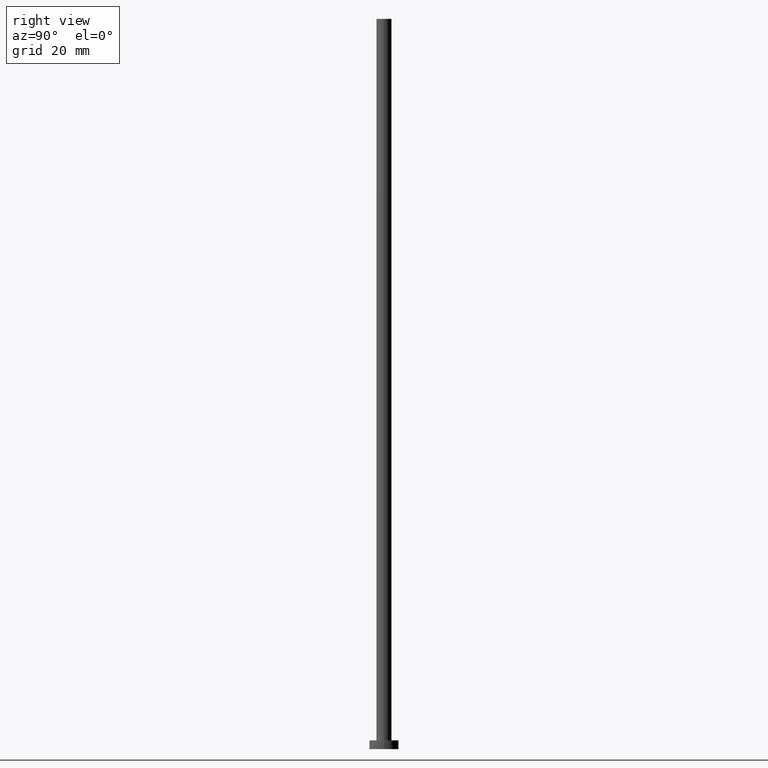
[diagram: clean part render]
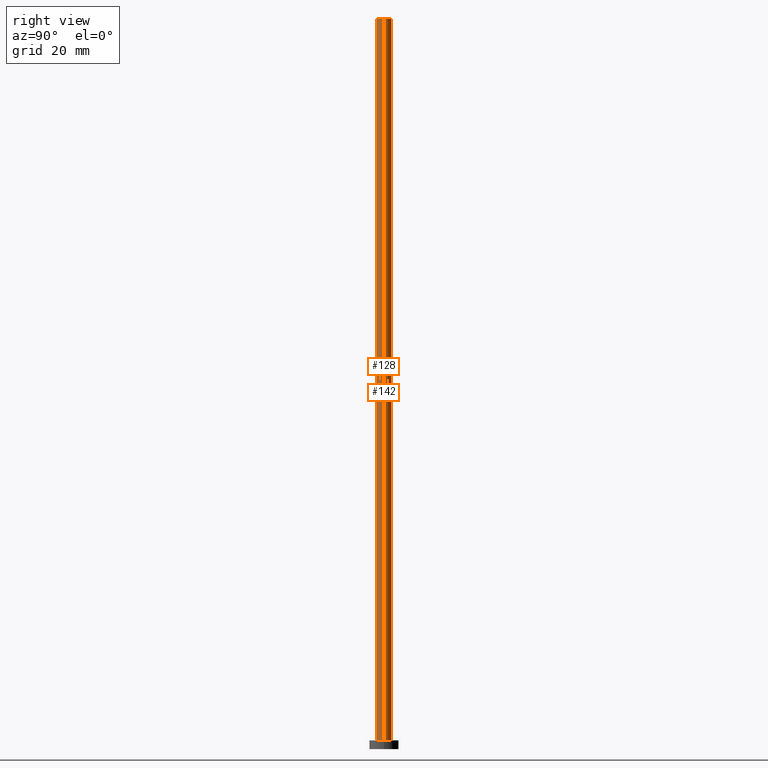
[diagram: same view with one multi-face feature highlighted, each face labeled with its STEP entity id]
A machine part, right view. The highlighted faces form ONE feature: a constant-radius fillet chain: 2 tangent blend faces with common blend radius 2.6 mm. The faces share edges in the B-rep.
Their STEP definitions:
[1] entity #142 (Cylinder):
#30 = CARTESIAN_POINT ( 'NONE',  ( -2.600000000000000089, 0.000000000000000000, 3.000000000000000000 ) ) ;
#34 = CARTESIAN_POINT ( 'NONE',  ( -2.600000000000000089, 0.000000000000000000, 250.0000000000000000 ) ) ;
#37 = VERTEX_POINT ( 'NONE', #40 ) ;
#40 = CARTESIAN_POINT ( 'NONE',  ( 2.600000000000000089, 3.184081677783118191E-16, 250.0000000000000000 ) ) ;
#50 = VECTOR ( 'NONE', #157, 1000.000000000000000 ) ;
#51 = DIRECTION ( 'NONE',  ( 0.000000000000000000, 0.000000000000000000, 1.000000000000000000 ) ) ;
#52 = EDGE_CURVE ( 'NONE', #37, #168, #176, .T. ) ;
#65 = DIRECTION ( 'NONE',  ( -1.000000000000000000, 0.000000000000000000, 0.000000000000000000 ) ) ;
#66 = DIRECTION ( 'NONE',  ( 0.000000000000000000, 0.000000000000000000, 1.000000000000000000 ) ) ;
#77 = CARTESIAN_POINT ( 'NONE',  ( 2.600000000000000089, 3.184081677783118191E-16, 3.000000000000000000 ) ) ;
#79 = FACE_OUTER_BOUND ( 'NONE', #151, .T. ) ;
#82 = DIRECTION ( 'NONE',  ( 1.000000000000000000, 0.000000000000000000, 0.000000000000000000 ) ) ;
#97 = CARTESIAN_POINT ( 'NONE',  ( -2.600000000000000089, 0.000000000000000000, 250.0000000000000000 ) ) ;
#106 = AXIS2_PLACEMENT_3D ( 'NONE', #208, #66, #82 ) ;
#108 = AXIS2_PLACEMENT_3D ( 'NONE', #205, #51, #141 ) ;
#126 = CYLINDRICAL_SURFACE ( 'NONE', #184, 2.600000000000000089 ) ;
#137 = LINE ( 'NONE', #221, #214 ) ;
#138 = LINE ( 'NONE', #34, #50 ) ;
#141 = DIRECTION ( 'NONE',  ( 1.000000000000000000, 0.000000000000000000, 0.000000000000000000 ) ) ;
#142 = ADVANCED_FACE ( 'NONE', ( #79 ), #126, .T. ) ;
#143 = EDGE_CURVE ( 'NONE', #168, #238, #138, .T. ) ;
#151 = EDGE_LOOP ( 'NONE', ( #166, #196, #170, #236 ) ) ;
#157 = DIRECTION ( 'NONE',  ( -0.000000000000000000, -0.000000000000000000, -1.000000000000000000 ) ) ;
#166 = ORIENTED_EDGE ( 'NONE', *, *, #52, .F. ) ;
#168 = VERTEX_POINT ( 'NONE', #97 ) ;
#170 = ORIENTED_EDGE ( 'NONE', *, *, #252, .T. ) ;
#176 = CIRCLE ( 'NONE', #108, 2.600000000000000089 ) ;
#184 = AXIS2_PLACEMENT_3D ( 'NONE', #199, #250, #65 ) ;
#196 = ORIENTED_EDGE ( 'NONE', *, *, #209, .T. ) ;
#199 = CARTESIAN_POINT ( 'NONE',  ( 0.000000000000000000, 0.000000000000000000, 250.0000000000000000 ) ) ;
#205 = CARTESIAN_POINT ( 'NONE',  ( 0.000000000000000000, 0.000000000000000000, 250.0000000000000000 ) ) ;
#208 = CARTESIAN_POINT ( 'NONE',  ( 0.000000000000000000, 0.000000000000000000, 3.000000000000000000 ) ) ;
#209 = EDGE_CURVE ( 'NONE', #37, #213, #137, .T. ) ;
#213 = VERTEX_POINT ( 'NONE', #77 ) ;
#214 = VECTOR ( 'NONE', #248, 1000.000000000000000 ) ;
#221 = CARTESIAN_POINT ( 'NONE',  ( 2.600000000000000089, 3.184081677783118191E-16, 250.0000000000000000 ) ) ;
#224 = CIRCLE ( 'NONE', #106, 2.600000000000000089 ) ;
#236 = ORIENTED_EDGE ( 'NONE', *, *, #143, .F. ) ;
#238 = VERTEX_POINT ( 'NONE', #30 ) ;
#248 = DIRECTION ( 'NONE',  ( -0.000000000000000000, -0.000000000000000000, -1.000000000000000000 ) ) ;
#250 = DIRECTION ( 'NONE',  ( -0.000000000000000000, -0.000000000000000000, -1.000000000000000000 ) ) ;
#252 = EDGE_CURVE ( 'NONE', #213, #238, #224, .T. ) ;
[2] entity #128 (Cylinder):
#7 = ORIENTED_EDGE ( 'NONE', *, *, #209, .F. ) ;
#30 = CARTESIAN_POINT ( 'NONE',  ( -2.600000000000000089, 0.000000000000000000, 3.000000000000000000 ) ) ;
#34 = CARTESIAN_POINT ( 'NONE',  ( -2.600000000000000089, 0.000000000000000000, 250.0000000000000000 ) ) ;
#37 = VERTEX_POINT ( 'NONE', #40 ) ;
#40 = CARTESIAN_POINT ( 'NONE',  ( 2.600000000000000089, 3.184081677783118191E-16, 250.0000000000000000 ) ) ;
#45 = DIRECTION ( 'NONE',  ( 1.000000000000000000, 0.000000000000000000, 0.000000000000000000 ) ) ;
#50 = VECTOR ( 'NONE', #157, 1000.000000000000000 ) ;
#53 = FACE_OUTER_BOUND ( 'NONE', #136, .T. ) ;
#68 = ORIENTED_EDGE ( 'NONE', *, *, #143, .T. ) ;
#70 = CIRCLE ( 'NONE', #140, 2.600000000000000089 ) ;
#73 = ORIENTED_EDGE ( 'NONE', *, *, #161, .F. ) ;
#77 = CARTESIAN_POINT ( 'NONE',  ( 2.600000000000000089, 3.184081677783118191E-16, 3.000000000000000000 ) ) ;
#88 = ORIENTED_EDGE ( 'NONE', *, *, #242, .T. ) ;
#97 = CARTESIAN_POINT ( 'NONE',  ( -2.600000000000000089, 0.000000000000000000, 250.0000000000000000 ) ) ;
#103 = CARTESIAN_POINT ( 'NONE',  ( 0.000000000000000000, 0.000000000000000000, 250.0000000000000000 ) ) ;
#104 = AXIS2_PLACEMENT_3D ( 'NONE', #187, #165, #127 ) ;
#109 = CIRCLE ( 'NONE', #104, 2.600000000000000089 ) ;
#127 = DIRECTION ( 'NONE',  ( 1.000000000000000000, 0.000000000000000000, 0.000000000000000000 ) ) ;
#128 = ADVANCED_FACE ( 'NONE', ( #53 ), #156, .T. ) ;
#136 = EDGE_LOOP ( 'NONE', ( #7, #73, #68, #88 ) ) ;
#137 = LINE ( 'NONE', #221, #214 ) ;
#138 = LINE ( 'NONE', #34, #50 ) ;
#140 = AXIS2_PLACEMENT_3D ( 'NONE', #103, #223, #45 ) ;
#143 = EDGE_CURVE ( 'NONE', #168, #238, #138, .T. ) ;
#156 = CYLINDRICAL_SURFACE ( 'NONE', #237, 2.600000000000000089 ) ;
#157 = DIRECTION ( 'NONE',  ( -0.000000000000000000, -0.000000000000000000, -1.000000000000000000 ) ) ;
#161 = EDGE_CURVE ( 'NONE', #168, #37, #70, .T. ) ;
#165 = DIRECTION ( 'NONE',  ( 0.000000000000000000, 0.000000000000000000, 1.000000000000000000 ) ) ;
#168 = VERTEX_POINT ( 'NONE', #97 ) ;
#177 = DIRECTION ( 'NONE',  ( -0.000000000000000000, -0.000000000000000000, -1.000000000000000000 ) ) ;
#179 = CARTESIAN_POINT ( 'NONE',  ( 0.000000000000000000, 0.000000000000000000, 250.0000000000000000 ) ) ;
#187 = CARTESIAN_POINT ( 'NONE',  ( 0.000000000000000000, 0.000000000000000000, 3.000000000000000000 ) ) ;
#209 = EDGE_CURVE ( 'NONE', #37, #213, #137, .T. ) ;
#213 = VERTEX_POINT ( 'NONE', #77 ) ;
#214 = VECTOR ( 'NONE', #248, 1000.000000000000000 ) ;
#221 = CARTESIAN_POINT ( 'NONE',  ( 2.600000000000000089, 3.184081677783118191E-16, 250.0000000000000000 ) ) ;
#223 = DIRECTION ( 'NONE',  ( 0.000000000000000000, 0.000000000000000000, 1.000000000000000000 ) ) ;
#237 = AXIS2_PLACEMENT_3D ( 'NONE', #179, #177, #246 ) ;
#238 = VERTEX_POINT ( 'NONE', #30 ) ;
#242 = EDGE_CURVE ( 'NONE', #238, #213, #109, .T. ) ;
#246 = DIRECTION ( 'NONE',  ( -1.000000000000000000, 0.000000000000000000, 0.000000000000000000 ) ) ;
#248 = DIRECTION ( 'NONE',  ( -0.000000000000000000, -0.000000000000000000, -1.000000000000000000 ) ) ;